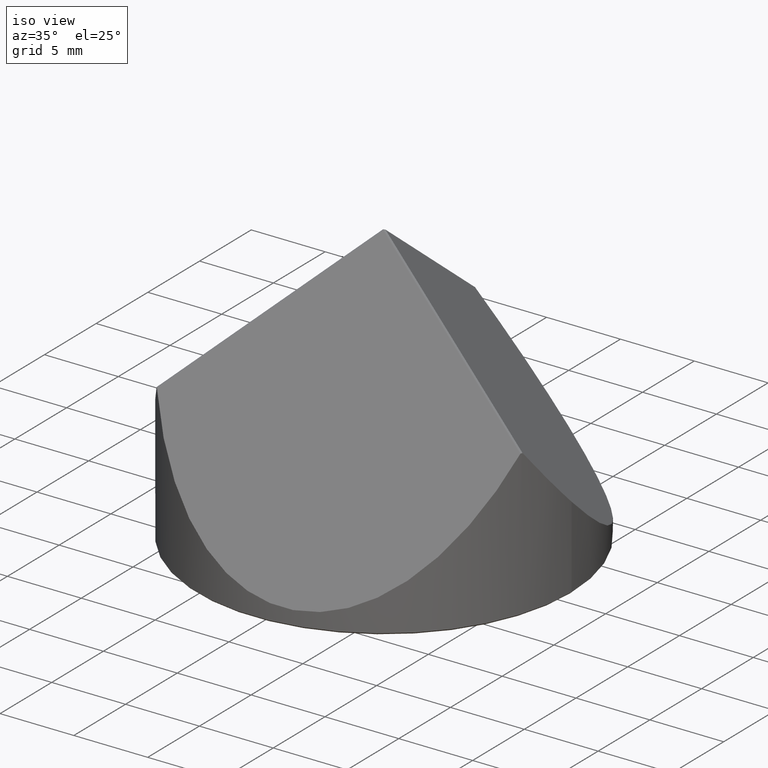
[diagram: clean part render]
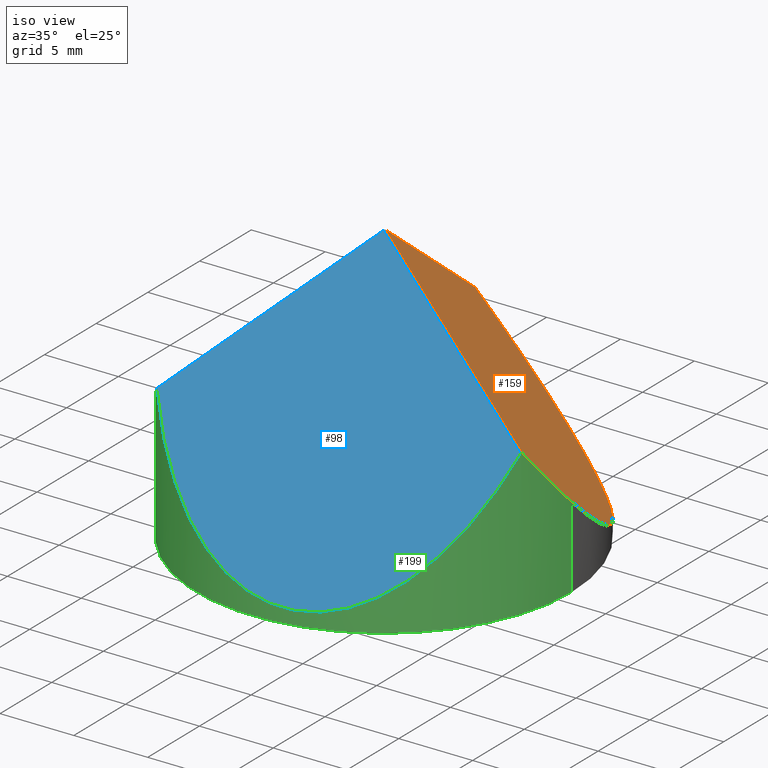
[diagram: same view with three faces highlighted in distinct colors, each labeled with its STEP entity id]
A machine part, iso view with three faces highlighted in distinct colors.
Their STEP definitions:

[orange] entity #159 — the highlighted planar face has unit normal (0.6077, 0.5453, 0.5774).
#50 = CARTESIAN_POINT ( 'NONE',  ( 12.69999999999999929, 1.555301434917138433E-15, 5.611920421393865155 ) ) ;
#55 = VERTEX_POINT ( 'NONE', #78 ) ;
#70 = DIRECTION ( 'NONE',  ( 0.1683570817218983939, -0.7989509119468809484, 0.5773502691896257311 ) ) ;
#78 = CARTESIAN_POINT ( 'NONE',  ( -2.549438031107219338, 12.44147763433042364, 9.913536654948595483 ) ) ;
#86 = EDGE_CURVE ( 'NONE', #367, #55, #286, .T. ) ;
#97 = EDGE_LOOP ( 'NONE', ( #150, #181, #233, #175 ) ) ;
#99 = CARTESIAN_POINT ( 'NONE',  ( 0.06077332452617569686, 0.05452769656516440883, 18.86478606723122553 ) ) ;
#103 = CARTESIAN_POINT ( 'NONE',  ( 12.09329232385365493, -3.878437929092366510, 9.913536654948586602 ) ) ;
#147 = LINE ( 'NONE', #346, #231 ) ;
#150 = ORIENTED_EDGE ( 'NONE', *, *, #349, .T. ) ;
#159 = ADVANCED_FACE ( 'NONE', ( #235 ), #285, .T. ) ;
#168 = CARTESIAN_POINT ( 'NONE',  ( 12.70000000000000107, 8.691711861742190237, -2.596944323644162278 ) ) ;
#171 = CARTESIAN_POINT ( 'NONE',  ( 5.965344546208515730, 14.18627927021635138, -0.6972085321788039636 ) ) ;
#175 = ORIENTED_EDGE ( 'NONE', *, *, #86, .T. ) ;
#181 = ORIENTED_EDGE ( 'NONE', *, *, #248, .T. ) ;
#194 = CARTESIAN_POINT ( 'NONE',  ( 12.69999999999999929, 1.555301434917138433E-15, 5.611920421393865155 ) ) ;
#215 = CARTESIAN_POINT ( 'NONE',  ( -1.767290964988526891, 8.729741214567862784, 12.59576905379380918 ) ) ;
#231 = VECTOR ( 'NONE', #260, 1000.000000000000000 ) ;
#233 = ORIENTED_EDGE ( 'NONE', *, *, #322, .T. ) ;
#235 = FACE_OUTER_BOUND ( 'NONE', #97, .T. ) ;
#238 = DIRECTION ( 'NONE',  ( 0.6887517733186865332, 0.000000000000000000, -0.7249972377536101353 ) ) ;
#239 = CARTESIAN_POINT ( 'NONE',  ( 12.69999999999999929, 1.555301434917138433E-15, 5.611920421393865155 ) ) ;
#244 = CARTESIAN_POINT ( 'NONE',  ( 12.49613108428735231, -2.622353139708192948, 8.303192537404235907 ) ) ;
#248 = EDGE_CURVE ( 'NONE', #305, #333, #147, .T. ) ;
#260 = DIRECTION ( 'NONE',  ( 0.7760903269836918472, -0.2536739462952657953, -0.5773502691896255090 ) ) ;
#265 = VECTOR ( 'NONE', #70, 1000.000000000000000 ) ;
#270 = AXIS2_PLACEMENT_3D ( 'NONE', #347, #291, #238 ) ;
#272 = LINE ( 'NONE', #215, #265 ) ;
#285 = PLANE ( 'NONE',  #270 ) ;
#286 =( BOUNDED_CURVE ( )  B_SPLINE_CURVE ( 3, ( #50, #168, #171, #312 ),
 .UNSPECIFIED., .F., .F. ) 
 B_SPLINE_CURVE_WITH_KNOTS ( ( 4, 4 ),
 ( 5.551902276905597233, 7.324815059678313034 ),
 .UNSPECIFIED. ) 
 CURVE ( )  GEOMETRIC_REPRESENTATION_ITEM ( )  RATIONAL_B_SPLINE_CURVE ( ( 1.000000000000000000, 0.7547744714256109377, 0.7547744714256109377, 1.000000000000000000 ) ) 
 REPRESENTATION_ITEM ( '' )  );
#291 = DIRECTION ( 'NONE',  ( 0.6077332452617948411, 0.5452769656516168739, 0.5773502691896251759 ) ) ;
#300 = CARTESIAN_POINT ( 'NONE',  ( 12.09329232385365493, -3.878437929092366510, 9.913536654948586602 ) ) ;
#305 = VERTEX_POINT ( 'NONE', #99 ) ;
#312 = CARTESIAN_POINT ( 'NONE',  ( -2.549438031107219338, 12.44147763433042364, 9.913536654948595483 ) ) ;
#322 = EDGE_CURVE ( 'NONE', #333, #367, #338, .T. ) ;
#333 = VERTEX_POINT ( 'NONE', #300 ) ;
#338 =( BOUNDED_CURVE ( )  B_SPLINE_CURVE ( 3, ( #103, #244, #351, #194 ),
 .UNSPECIFIED., .F., .T. ) 
 B_SPLINE_CURVE_WITH_KNOTS ( ( 4, 4 ),
 ( 5.241555554680860318, 5.551902276905597233 ),
 .UNSPECIFIED. ) 
 CURVE ( )  GEOMETRIC_REPRESENTATION_ITEM ( )  RATIONAL_B_SPLINE_CURVE ( ( 1.000000000000000000, 0.9919898349478311061, 0.9919898349478311061, 1.000000000000000000 ) ) 
 REPRESENTATION_ITEM ( '' )  );
#346 = CARTESIAN_POINT ( 'NONE',  ( 8.487760759128029520, -2.699928947965325232, 12.59576905379380740 ) ) ;
#347 = CARTESIAN_POINT ( 'NONE',  ( 6.659696469613340497, 5.975284570037382892, 6.326752040356367957 ) ) ;
#349 = EDGE_CURVE ( 'NONE', #55, #305, #272, .T. ) ;
#351 = CARTESIAN_POINT ( 'NONE',  ( 12.70000000000000107, -1.319101233806576623, 6.857742163482829056 ) ) ;
#367 = VERTEX_POINT ( 'NONE', #239 ) ;

[blue] entity #98 — the highlighted planar face has unit normal (0.1684, -0.799, 0.5774).
#23 = VERTEX_POINT ( 'NONE', #193 ) ;
#27 = PLANE ( 'NONE',  #314 ) ;
#33 =( BOUNDED_CURVE ( )  B_SPLINE_CURVE ( 3, ( #253, #279, #310, #79 ),
 .UNSPECIFIED., .F., .F. ) 
 B_SPLINE_CURVE_WITH_KNOTS ( ( 4, 4 ),
 ( 5.241555554680855877, 7.324815059678307705 ),
 .UNSPECIFIED. ) 
 CURVE ( )  GEOMETRIC_REPRESENTATION_ITEM ( )  RATIONAL_B_SPLINE_CURVE ( ( 1.000000000000000000, 0.6698760534178429538, 0.6698760534178429538, 1.000000000000000000 ) ) 
 REPRESENTATION_ITEM ( '' )  );
#54 = DIRECTION ( 'NONE',  ( 0.1683570817218973670, -0.7989509119468803933, 0.5773502691896269523 ) ) ;
#76 = EDGE_CURVE ( 'NONE', #309, #303, #33, .T. ) ;
#77 = CARTESIAN_POINT ( 'NONE',  ( 8.443823142774041557, -2.834351735725172183, 12.59576905379380918 ) ) ;
#79 = CARTESIAN_POINT ( 'NONE',  ( 12.04935470749969184, -4.012860716852132192, 9.913536654948508442 ) ) ;
#80 = ORIENTED_EDGE ( 'NONE', *, *, #76, .T. ) ;
#98 = ADVANCED_FACE ( 'NONE', ( #227 ), #27, .T. ) ;
#100 = EDGE_LOOP ( 'NONE', ( #359, #205, #80 ) ) ;
#101 = CARTESIAN_POINT ( 'NONE',  ( -9.405471935521878990, -8.533879403302485400, 9.913536654948641669 ) ) ;
#107 = CARTESIAN_POINT ( 'NONE',  ( 1.844899997686883841, -8.755108609197396419, 6.326752040356407036 ) ) ;
#135 = EDGE_CURVE ( 'NONE', #23, #309, #362, .T. ) ;
#137 = DIRECTION ( 'NONE',  ( -0.6077332452617936198, -0.5452769656516175401, -0.5773502691896255090 ) ) ;
#139 = VECTOR ( 'NONE', #137, 1000.000000000000114 ) ;
#142 = DIRECTION ( 'NONE',  ( 0.000000000000000000, -0.5857106597838074302, -0.8105202175242867124 ) ) ;
#164 = LINE ( 'NONE', #77, #278 ) ;
#172 = CARTESIAN_POINT ( 'NONE',  ( -6.582087436914971335, -6.000651964666918303, 12.59576905379380918 ) ) ;
#193 = CARTESIAN_POINT ( 'NONE',  ( 0.01683570817218583981, -0.07989509119468252152, 18.86478606723122908 ) ) ;
#205 = ORIENTED_EDGE ( 'NONE', *, *, #135, .T. ) ;
#210 = CARTESIAN_POINT ( 'NONE',  ( 12.04935470749969184, -4.012860716852132192, 9.913536654948508442 ) ) ;
#227 = FACE_OUTER_BOUND ( 'NONE', #100, .T. ) ;
#253 = CARTESIAN_POINT ( 'NONE',  ( -9.405471935521878990, -8.533879403302485400, 9.913536654948641669 ) ) ;
#278 = VECTOR ( 'NONE', #323, 1000.000000000000114 ) ;
#279 = CARTESIAN_POINT ( 'NONE',  ( -2.074081374338276884, -16.61404844633792521, -3.405847358253904389 ) ) ;
#303 = VERTEX_POINT ( 'NONE', #210 ) ;
#309 = VERTEX_POINT ( 'NONE', #101 ) ;
#310 = CARTESIAN_POINT ( 'NONE',  ( 8.601936740532737602, -14.36436923907602292, -3.405847358253973223 ) ) ;
#314 = AXIS2_PLACEMENT_3D ( 'NONE', #107, #54, #142 ) ;
#323 = DIRECTION ( 'NONE',  ( -0.7760903269836917362, 0.2536739462952657398, 0.5773502691896255090 ) ) ;
#345 = EDGE_CURVE ( 'NONE', #303, #23, #164, .T. ) ;
#359 = ORIENTED_EDGE ( 'NONE', *, *, #345, .T. ) ;
#362 = LINE ( 'NONE', #172, #139 ) ;

[green] entity #199 — the highlighted cylindrical surface (partial cylindrical patch) has radius 12.7 mm, axis along (-0, -0, -1).
#2 = CYLINDRICAL_SURFACE ( 'NONE', #251, 12.69999999999999929 ) ;
#4 = DIRECTION ( 'NONE',  ( -0.000000000000000000, -0.000000000000000000, -1.000000000000000000 ) ) ;
#5 = CARTESIAN_POINT ( 'NONE',  ( 12.09329232385365493, -3.878437929092366510, 9.913536654948586602 ) ) ;
#6 =( BOUNDED_CURVE ( )  B_SPLINE_CURVE ( 3, ( #129, #241, #212, #153 ),
 .UNSPECIFIED., .F., .F. ) 
 B_SPLINE_CURVE_WITH_KNOTS ( ( 4, 4 ),
 ( 6.277617508481705855, 6.288753105877451510 ),
 .UNSPECIFIED. ) 
 CURVE ( )  GEOMETRIC_REPRESENTATION_ITEM ( )  RATIONAL_B_SPLINE_CURVE ( ( 1.000000000000000000, 0.9999896665659149253, 0.9999896665659149253, 1.000000000000000000 ) ) 
 REPRESENTATION_ITEM ( '' )  );
#14 = CARTESIAN_POINT ( 'NONE',  ( 0.000000000000000000, 0.000000000000000000, 0.08000000000000020983 ) ) ;
#29 = VERTEX_POINT ( 'NONE', #330 ) ;
#33 =( BOUNDED_CURVE ( )  B_SPLINE_CURVE ( 3, ( #253, #279, #310, #79 ),
 .UNSPECIFIED., .F., .F. ) 
 B_SPLINE_CURVE_WITH_KNOTS ( ( 4, 4 ),
 ( 5.241555554680855877, 7.324815059678307705 ),
 .UNSPECIFIED. ) 
 CURVE ( )  GEOMETRIC_REPRESENTATION_ITEM ( )  RATIONAL_B_SPLINE_CURVE ( ( 1.000000000000000000, 0.6698760534178429538, 0.6698760534178429538, 1.000000000000000000 ) ) 
 REPRESENTATION_ITEM ( '' )  );
#38 = VECTOR ( 'NONE', #289, 1000.000000000000000 ) ;
#51 = ORIENTED_EDGE ( 'NONE', *, *, #308, .T. ) ;
#56 = CARTESIAN_POINT ( 'NONE',  ( -12.69999999999999929, 0.000000000000000000, 1.908562075568193128 ) ) ;
#59 = FACE_OUTER_BOUND ( 'NONE', #325, .T. ) ;
#65 = VERTEX_POINT ( 'NONE', #304 ) ;
#68 = VECTOR ( 'NONE', #4, 1000.000000000000000 ) ;
#71 =( BOUNDED_CURVE ( )  B_SPLINE_CURVE ( 3, ( #5, #87, #179, #184 ),
 .UNSPECIFIED., .F., .F. ) 
 B_SPLINE_CURVE_WITH_KNOTS ( ( 4, 4 ),
 ( 6.277617508481750264, 6.288753105877488814 ),
 .UNSPECIFIED. ) 
 CURVE ( )  GEOMETRIC_REPRESENTATION_ITEM ( )  RATIONAL_B_SPLINE_CURVE ( ( 1.000000000000000000, 0.9999896665659149253, 0.9999896665659149253, 1.000000000000000000 ) ) 
 REPRESENTATION_ITEM ( '' )  );
#76 = EDGE_CURVE ( 'NONE', #309, #303, #33, .T. ) ;
#79 = CARTESIAN_POINT ( 'NONE',  ( 12.04935470749969184, -4.012860716852132192, 9.913536654948508442 ) ) ;
#87 = CARTESIAN_POINT ( 'NONE',  ( 12.07889600837074973, -3.923326839190758086, 9.913351060699756800 ) ) ;
#90 = CARTESIAN_POINT ( 'NONE',  ( -11.58490006638009717, -6.078626560760164388, 6.078314110506783940 ) ) ;
#101 = CARTESIAN_POINT ( 'NONE',  ( -9.405471935521878990, -8.533879403302485400, 9.913536654948641669 ) ) ;
#103 = CARTESIAN_POINT ( 'NONE',  ( 12.09329232385365493, -3.878437929092366510, 9.913536654948586602 ) ) ;
#104 = ORIENTED_EDGE ( 'NONE', *, *, #243, .F. ) ;
#105 = ORIENTED_EDGE ( 'NONE', *, *, #180, .T. ) ;
#114 = ORIENTED_EDGE ( 'NONE', *, *, #76, .F. ) ;
#121 = CARTESIAN_POINT ( 'NONE',  ( 0.000000000000000000, 0.000000000000000000, 10.00000000000000000 ) ) ;
#125 = DIRECTION ( 'NONE',  ( -1.000000000000000000, 0.000000000000000000, 0.000000000000000000 ) ) ;
#129 = CARTESIAN_POINT ( 'NONE',  ( -9.405471935521878990, -8.533879403302485400, 9.913536654948641669 ) ) ;
#143 = CARTESIAN_POINT ( 'NONE',  ( -12.69999999999999929, 0.000000000000000000, 1.908562075568193128 ) ) ;
#146 = LINE ( 'NONE', #177, #68 ) ;
#149 = CARTESIAN_POINT ( 'NONE',  ( -12.69999999999999751, -3.141593610445596152, 3.288903423527215431 ) ) ;
#153 = CARTESIAN_POINT ( 'NONE',  ( -9.499916676392437864, -8.428616917478272796, 9.913536654948565285 ) ) ;
#177 = CARTESIAN_POINT ( 'NONE',  ( -12.69999999999999929, 0.000000000000000000, 10.00000000000000000 ) ) ;
#179 = CARTESIAN_POINT ( 'NONE',  ( 12.06424998490903988, -3.968134898131804977, 9.913351060699758577 ) ) ;
#180 = EDGE_CURVE ( 'NONE', #333, #303, #71, .T. ) ;
#184 = CARTESIAN_POINT ( 'NONE',  ( 12.04935470749969184, -4.012860716852132192, 9.913536654948508442 ) ) ;
#189 =( BOUNDED_CURVE ( )  B_SPLINE_CURVE ( 3, ( #56, #149, #90, #206 ),
 .UNSPECIFIED., .F., .F. ) 
 B_SPLINE_CURVE_WITH_KNOTS ( ( 4, 4 ),
 ( 0.3159145209226036921, 1.041629752498725026 ),
 .UNSPECIFIED. ) 
 CURVE ( )  GEOMETRIC_REPRESENTATION_ITEM ( )  RATIONAL_B_SPLINE_CURVE ( ( 1.000000000000000000, 0.9565908929254083315, 0.9565908929254083315, 1.000000000000000000 ) ) 
 REPRESENTATION_ITEM ( '' )  );
#194 = CARTESIAN_POINT ( 'NONE',  ( 12.69999999999999929, 1.555301434917138433E-15, 5.611920421393865155 ) ) ;
#199 = ADVANCED_FACE ( 'NONE', ( #59 ), #2, .T. ) ;
#200 = ORIENTED_EDGE ( 'NONE', *, *, #282, .T. ) ;
#203 = CARTESIAN_POINT ( 'NONE',  ( -9.499916676392437864, -8.428616917478272796, 9.913536654948565285 ) ) ;
#206 = CARTESIAN_POINT ( 'NONE',  ( -9.499916676392437864, -8.428616917478272796, 9.913536654948565285 ) ) ;
#208 = DIRECTION ( 'NONE',  ( -1.000000000000000000, 0.000000000000000000, 0.000000000000000000 ) ) ;
#210 = CARTESIAN_POINT ( 'NONE',  ( 12.04935470749969184, -4.012860716852132192, 9.913536654948508442 ) ) ;
#212 = CARTESIAN_POINT ( 'NONE',  ( -9.468630619880229915, -8.463879515471369075, 9.913351060699751471 ) ) ;
#226 = VERTEX_POINT ( 'NONE', #143 ) ;
#239 = CARTESIAN_POINT ( 'NONE',  ( 12.69999999999999929, 1.555301434917138433E-15, 5.611920421393865155 ) ) ;
#241 = CARTESIAN_POINT ( 'NONE',  ( -9.437148714273845940, -8.498967373324177288, 9.913351060699753248 ) ) ;
#243 = EDGE_CURVE ( 'NONE', #367, #65, #255, .T. ) ;
#244 = CARTESIAN_POINT ( 'NONE',  ( 12.49613108428735231, -2.622353139708192948, 8.303192537404235907 ) ) ;
#251 = AXIS2_PLACEMENT_3D ( 'NONE', #121, #321, #208 ) ;
#253 = CARTESIAN_POINT ( 'NONE',  ( -9.405471935521878990, -8.533879403302485400, 9.913536654948641669 ) ) ;
#254 = VERTEX_POINT ( 'NONE', #203 ) ;
#255 = LINE ( 'NONE', #366, #38 ) ;
#256 = EDGE_CURVE ( 'NONE', #226, #254, #189, .T. ) ;
#275 = DIRECTION ( 'NONE',  ( 0.000000000000000000, 0.000000000000000000, 1.000000000000000000 ) ) ;
#279 = CARTESIAN_POINT ( 'NONE',  ( -2.074081374338276884, -16.61404844633792521, -3.405847358253904389 ) ) ;
#280 = ORIENTED_EDGE ( 'NONE', *, *, #256, .F. ) ;
#282 = EDGE_CURVE ( 'NONE', #226, #29, #146, .T. ) ;
#289 = DIRECTION ( 'NONE',  ( -0.000000000000000000, -0.000000000000000000, -1.000000000000000000 ) ) ;
#300 = CARTESIAN_POINT ( 'NONE',  ( 12.09329232385365493, -3.878437929092366510, 9.913536654948586602 ) ) ;
#303 = VERTEX_POINT ( 'NONE', #210 ) ;
#304 = CARTESIAN_POINT ( 'NONE',  ( 12.69999999999999929, 1.555301434917138433E-15, 0.08000000000000020983 ) ) ;
#308 = EDGE_CURVE ( 'NONE', #29, #65, #329, .T. ) ;
#309 = VERTEX_POINT ( 'NONE', #101 ) ;
#310 = CARTESIAN_POINT ( 'NONE',  ( 8.601936740532737602, -14.36436923907602292, -3.405847358253973223 ) ) ;
#321 = DIRECTION ( 'NONE',  ( -0.000000000000000000, -0.000000000000000000, -1.000000000000000000 ) ) ;
#322 = EDGE_CURVE ( 'NONE', #333, #367, #338, .T. ) ;
#325 = EDGE_LOOP ( 'NONE', ( #104, #352, #105, #114, #358, #280, #200, #51 ) ) ;
#329 = CIRCLE ( 'NONE', #335, 12.69999999999999929 ) ;
#330 = CARTESIAN_POINT ( 'NONE',  ( -12.69999999999999929, 0.000000000000000000, 0.08000000000000020983 ) ) ;
#333 = VERTEX_POINT ( 'NONE', #300 ) ;
#335 = AXIS2_PLACEMENT_3D ( 'NONE', #14, #275, #125 ) ;
#338 =( BOUNDED_CURVE ( )  B_SPLINE_CURVE ( 3, ( #103, #244, #351, #194 ),
 .UNSPECIFIED., .F., .T. ) 
 B_SPLINE_CURVE_WITH_KNOTS ( ( 4, 4 ),
 ( 5.241555554680860318, 5.551902276905597233 ),
 .UNSPECIFIED. ) 
 CURVE ( )  GEOMETRIC_REPRESENTATION_ITEM ( )  RATIONAL_B_SPLINE_CURVE ( ( 1.000000000000000000, 0.9919898349478311061, 0.9919898349478311061, 1.000000000000000000 ) ) 
 REPRESENTATION_ITEM ( '' )  );
#339 = EDGE_CURVE ( 'NONE', #309, #254, #6, .T. ) ;
#351 = CARTESIAN_POINT ( 'NONE',  ( 12.70000000000000107, -1.319101233806576623, 6.857742163482829056 ) ) ;
#352 = ORIENTED_EDGE ( 'NONE', *, *, #322, .F. ) ;
#358 = ORIENTED_EDGE ( 'NONE', *, *, #339, .T. ) ;
#366 = CARTESIAN_POINT ( 'NONE',  ( 12.69999999999999929, 1.555301434917138433E-15, 10.00000000000000000 ) ) ;
#367 = VERTEX_POINT ( 'NONE', #239 ) ;